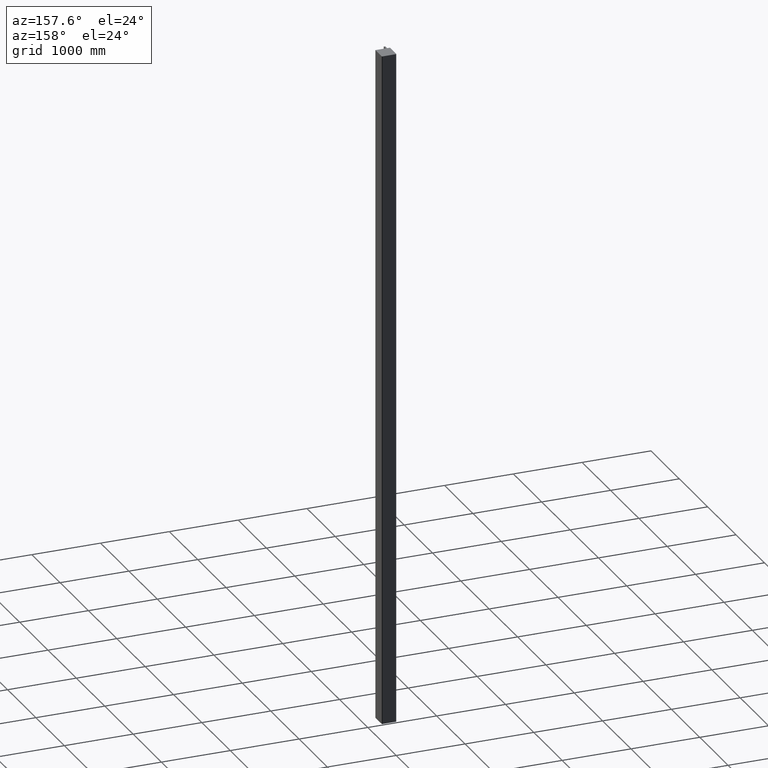
[diagram: clean part render]
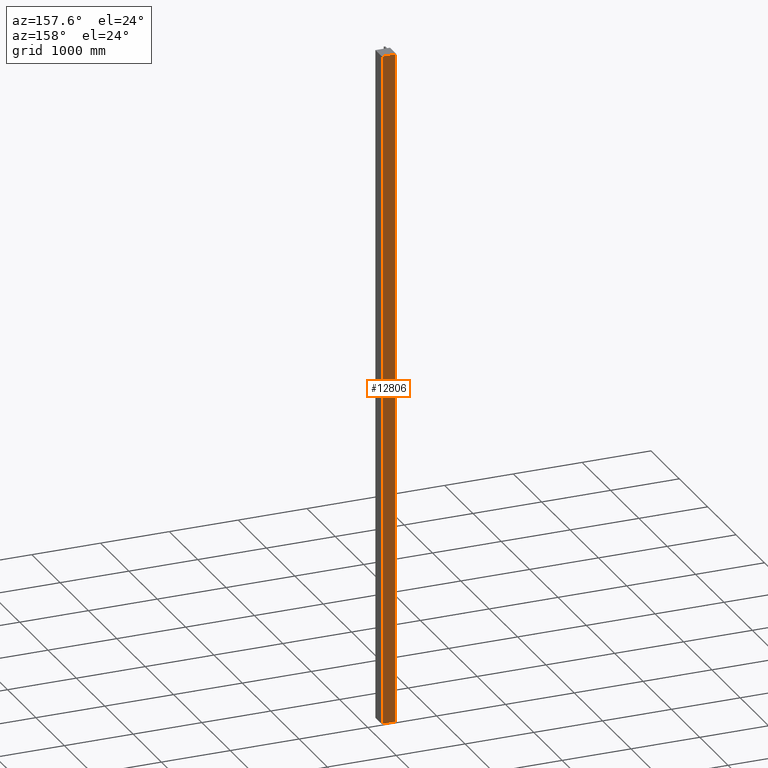
[diagram: same view with one face highlighted and labeled with its STEP entity id]
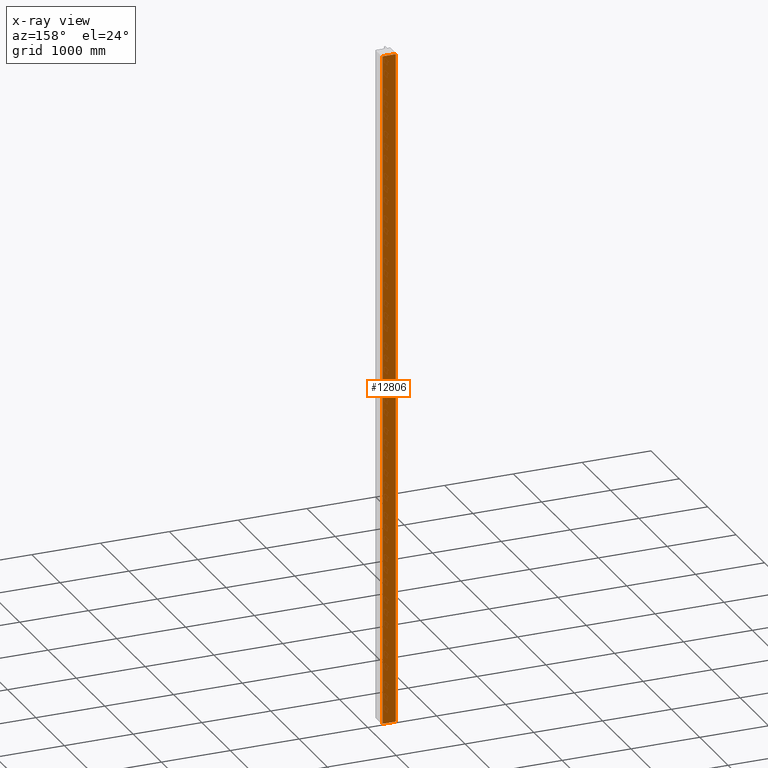
[diagram: x-ray of the same camera — body ghosted, the highlighted face saturated]
A machine part, auxiliary view. The second image highlights one B-rep face of the part: STEP entity #12806.
The next image is the same camera in x-ray: the body ghosted, the highlighted face saturated — about 0% of this face is hidden behind the body in this view.
In plain terms, the highlighted planar face has unit normal (0, 1, 0).
Its self-contained STEP definition (entity closure, byte-faithful):
#12309=CARTESIAN_POINT('',(6708.0208871467576,6276.4066631202131,-10000.0));
#12310=VERTEX_POINT('',#12309);
#12318=CARTESIAN_POINT('',(6900.0208871467694,6276.4066631202222,-10000.0));
#12319=VERTEX_POINT('',#12318);
#12320=CARTESIAN_POINT('',(6900.0208871467694,6276.4066631202168,-10000.0));
#12321=DIRECTION('',(-1.0,0.0,0.0));
#12322=VECTOR('',#12321,192.00000000001182);
#12323=LINE('',#12320,#12322);
#12324=EDGE_CURVE('',#12319,#12310,#12323,.T.);
#12695=CARTESIAN_POINT('',(6900.0208871467694,6276.4066631202568,-180.0));
#12696=VERTEX_POINT('',#12695);
#12704=CARTESIAN_POINT('',(6708.0208871467576,6276.4066631201767,-180.0));
#12705=VERTEX_POINT('',#12704);
#12706=CARTESIAN_POINT('',(6708.0208871467576,6276.4066631202131,-180.0));
#12707=DIRECTION('',(1.0,0.0,0.0));
#12708=VECTOR('',#12707,192.00000000001182);
#12709=LINE('',#12706,#12708);
#12710=EDGE_CURVE('',#12705,#12696,#12709,.T.);
#12779=CARTESIAN_POINT('',(6708.0208871467576,6276.4066631202131,-180.0));
#12780=DIRECTION('',(0.0,0.0,-1.0));
#12781=VECTOR('',#12780,9820.0);
#12782=LINE('',#12779,#12781);
#12783=EDGE_CURVE('',#12705,#12310,#12782,.T.);
#12790=CARTESIAN_POINT('',(6804.0208871467603,6276.406663120214,0.0));
#12791=DIRECTION('',(0.0,1.0,0.0));
#12792=DIRECTION('',(0.0,0.0,1.0));
#12793=AXIS2_PLACEMENT_3D('',#12790,#12791,#12792);
#12794=PLANE('',#12793);
#12795=ORIENTED_EDGE('',*,*,#12710,.T.);
#12796=CARTESIAN_POINT('',(6900.0208871467694,6276.4066631202222,-10000.0));
#12797=DIRECTION('',(0.0,0.0,1.0));
#12798=VECTOR('',#12797,9820.0);
#12799=LINE('',#12796,#12798);
#12800=EDGE_CURVE('',#12319,#12696,#12799,.T.);
#12801=ORIENTED_EDGE('',*,*,#12800,.F.);
#12802=ORIENTED_EDGE('',*,*,#12324,.T.);
#12803=ORIENTED_EDGE('',*,*,#12783,.F.);
#12804=EDGE_LOOP('',(#12795,#12801,#12802,#12803));
#12805=FACE_OUTER_BOUND('',#12804,.T.);
#12806=ADVANCED_FACE('',(#12805),#12794,.T.);